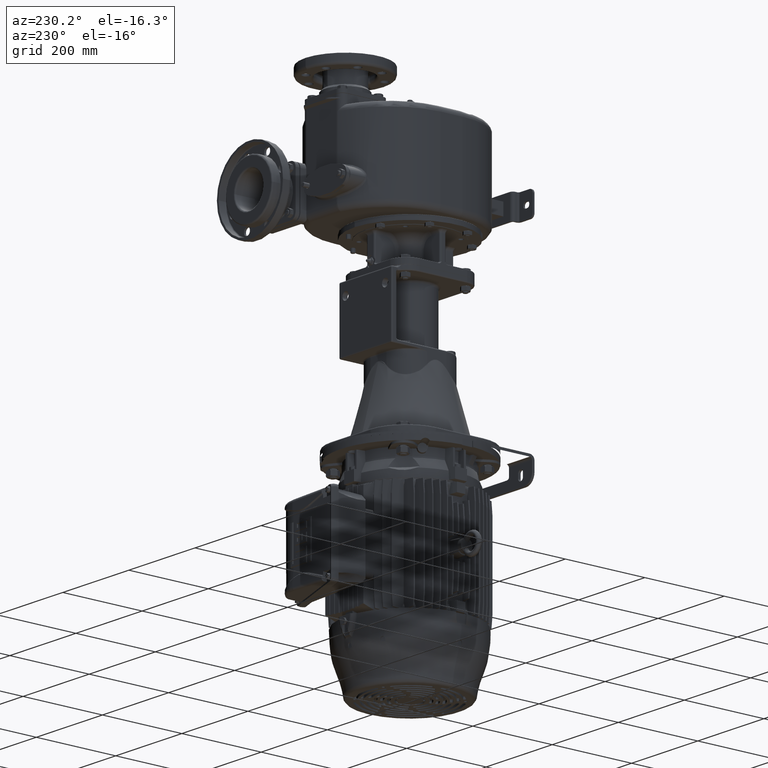
[diagram: clean part render]
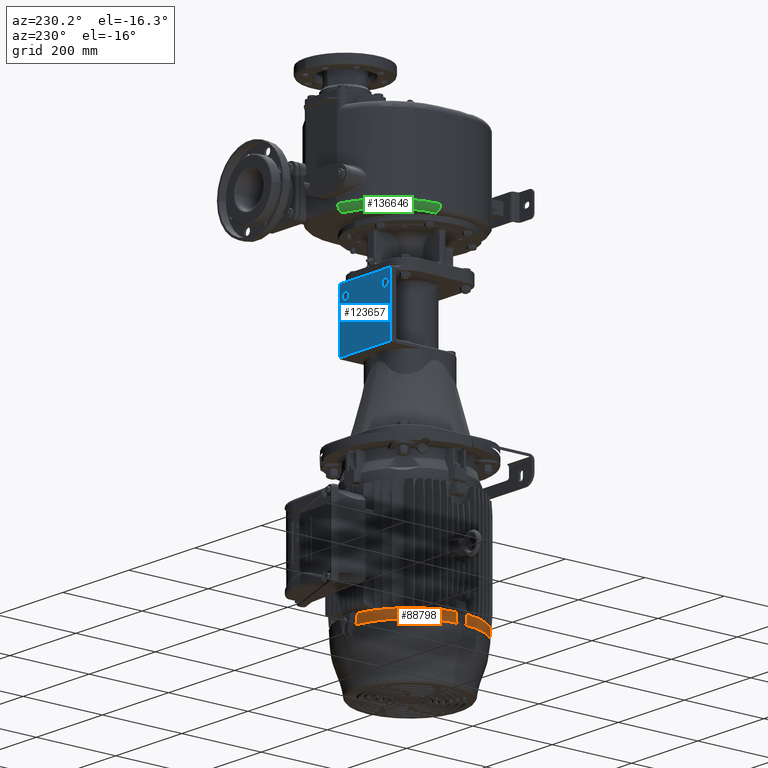
[diagram: same view with three faces highlighted in distinct colors, each labeled with its STEP entity id]
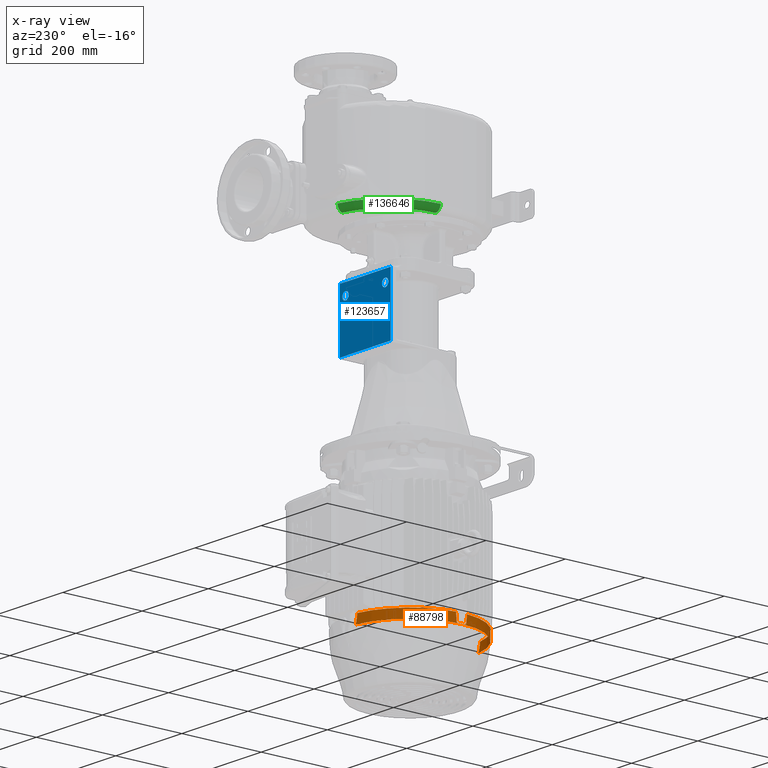
[diagram: x-ray of the same camera — body ghosted, the three highlighted faces saturated]
A machine part, auxiliary view with three faces highlighted in distinct colors.
The next image is the same camera in x-ray (body ghosted, the three faces saturated) — at least one of them is partly hidden behind the body in this view.
Their STEP definitions:

[orange] entity #88798 — the highlighted conical surface has half-angle 1.75 deg.
#407=CARTESIAN_POINT('',(-2.552182760664E1,3.279399471538E0,-8.592500025034E2));
#436=CARTESIAN_POINT('',(8.634161712649E-1,1.58E2,-8.5925E2));
#437=DIRECTION('',(0.E0,0.E0,1.E0));
#438=DIRECTION('',(-9.961033580094E-1,-8.819353809900E-2,0.E0));
#439=AXIS2_PLACEMENT_3D('',#436,#437,#438);
#454=CARTESIAN_POINT('',(8.634161712649E-1,1.58E2,-8.5925E2));
#455=DIRECTION('',(0.E0,0.E0,1.E0));
#456=DIRECTION('',(-1.681078342649E-1,9.857686118247E-1,0.E0));
#457=AXIS2_PLACEMENT_3D('',#454,#455,#456);
#486=CARTESIAN_POINT('',(-2.552182821588E1,3.127206041322E2,-8.592500025034E2));
#736=CARTESIAN_POINT('',(-2.495837948466E1,3.126292350262E2,-8.652668567173E2));
#738=CARTESIAN_POINT('',(-2.495837948467E1,3.370764973822E0,-8.652668567172E2));
#739=CARTESIAN_POINT('',(-2.502093538413E1,3.360575420930E0,-8.645989061599E2));
#740=CARTESIAN_POINT('',(-2.514609689609E1,3.340142174601E0,-8.632626152396E2));
#741=CARTESIAN_POINT('',(-2.533390851275E1,3.309713605558E0,-8.612569976525E2));
#742=CARTESIAN_POINT('',(-2.545917388664E1,3.289507572691E0,-8.599191309228E2));
#743=CARTESIAN_POINT('',(-2.552182760664E1,3.279399471538E0,-8.592500025034E2));
#745=CARTESIAN_POINT('',(-2.136977705618E1,3.317058907584E0,-8.815578225722E2));
#746=CARTESIAN_POINT('',(-2.229962292013E1,3.369314161969E0,-8.789208372825E2));
#747=CARTESIAN_POINT('',(-2.382941018441E1,3.440216795335E0,-8.735691604585E2));
#748=CARTESIAN_POINT('',(-2.469697889831E1,3.413676214610E0,-8.680613886810E2));
#749=CARTESIAN_POINT('',(-2.495837948467E1,3.370764973822E0,-8.652668567172E2));
#751=CARTESIAN_POINT('',(-2.495837948466E1,3.126292350262E2,-8.652668567173E2));
#752=CARTESIAN_POINT('',(-2.469697889829E1,3.125863237854E2,-8.680613886811E2));
#753=CARTESIAN_POINT('',(-2.382941018441E1,3.125597832047E2,-8.735691604584E2));
#754=CARTESIAN_POINT('',(-2.229962292013E1,3.126306858380E2,-8.789208372825E2));
#755=CARTESIAN_POINT('',(-2.136977705618E1,3.126829410924E2,-8.815578225722E2));
#757=CARTESIAN_POINT('',(-2.552182821588E1,3.127206041322E2,-8.592500025034E2));
#758=CARTESIAN_POINT('',(-2.545917449588E1,3.127104960311E2,-8.599191309228E2));
#759=CARTESIAN_POINT('',(-2.533390822844E1,3.126902847127E2,-8.612569976525E2));
#760=CARTESIAN_POINT('',(-2.514609697732E1,3.126598583059E2,-8.632626152397E2));
#761=CARTESIAN_POINT('',(-2.502093538413E1,3.126394245791E2,-8.645989061598E2));
#762=CARTESIAN_POINT('',(-2.495837948466E1,3.126292350262E2,-8.652668567173E2));
#764=CARTESIAN_POINT('',(-1.550041079223E2,1.695826025889E2,-8.8075E2));
#765=CARTESIAN_POINT('',(-1.551676963007E2,1.703358375773E2,-8.735834478003E2));
#766=CARTESIAN_POINT('',(-1.553260314024E2,1.710890846329E2,-8.664167807894E2));
#767=CARTESIAN_POINT('',(-1.554791604710E2,1.718423436471E2,-8.5925E2));
#769=CARTESIAN_POINT('',(-1.554791604710E2,1.441576563529E2,-8.5925E2));
#770=CARTESIAN_POINT('',(-1.553260314024E2,1.449109153671E2,-8.664167807894E2));
#771=CARTESIAN_POINT('',(-1.551676963007E2,1.456641624227E2,-8.735834478002E2));
#772=CARTESIAN_POINT('',(-1.550041079223E2,1.464173974111E2,-8.8075E2));
#1098=CARTESIAN_POINT('',(8.634161712649E-1,1.58E2,-8.815578226274E2));
#1099=DIRECTION('',(0.E0,0.E0,-1.E0));
#1100=DIRECTION('',(-1.E0,0.E0,0.E0));
#1101=AXIS2_PLACEMENT_3D('',#1098,#1099,#1100);
#1231=CARTESIAN_POINT('',(8.634161712649E-1,1.58E2,-8.815578226274E2));
#1232=DIRECTION('',(0.E0,0.E0,-1.E0));
#1233=DIRECTION('',(-1.422718546429E-1,-9.898276210414E-1,0.E0));
#1234=AXIS2_PLACEMENT_3D('',#1231,#1232,#1233);
#1242=CARTESIAN_POINT('',(-2.136977705618E1,3.317058907584E0,
-8.815578225722E2));
#1986=CARTESIAN_POINT('',(-2.495837948467E1,3.370764973822E0,
-8.652668567172E2));
#11293=CARTESIAN_POINT('',(-2.136977705618E1,3.126829410924E2,
-8.815578225722E2));
#11711=CARTESIAN_POINT('',(8.634161712649E-1,1.58E2,-8.8075E2));
#11712=DIRECTION('',(0.E0,0.E0,1.E0));
#11713=DIRECTION('',(-9.972503530911E-1,7.410622956036E-2,0.E0));
#11714=AXIS2_PLACEMENT_3D('',#11711,#11712,#11713);
#82161=VERTEX_POINT('',#1242);
#83054=CARTESIAN_POINT('',(-1.550041079223E2,1.464173974111E2,-8.8075E2));
#83056=VERTEX_POINT('',#83054);
#83057=CARTESIAN_POINT('',(-1.554791604710E2,1.718423436471E2,-8.5925E2));
#83058=VERTEX_POINT('',#83057);
#83059=CARTESIAN_POINT('',(-1.550041079223E2,1.695826025889E2,-8.8075E2));
#83060=VERTEX_POINT('',#83059);
#83061=CARTESIAN_POINT('',(-1.554791604710E2,1.441576563529E2,-8.5925E2));
#83062=VERTEX_POINT('',#83061);
#83065=VERTEX_POINT('',#1986);
#83070=VERTEX_POINT('',#486);
#83071=VERTEX_POINT('',#736);
#83074=VERTEX_POINT('',#407);
#83075=VERTEX_POINT('',#11293);
#83202=CARTESIAN_POINT('',(-1.554091890593E2,1.58E2,-8.815578226274E2));
#83203=VERTEX_POINT('',#83202);
#88772=CARTESIAN_POINT('',(8.634161712649E-1,1.58E2,-8.704039113137E2));
#88773=DIRECTION('',(0.E0,0.E0,1.E0));
#88774=DIRECTION('',(1.E0,0.E0,0.E0));
#88775=AXIS2_PLACEMENT_3D('',#88772,#88773,#88774);
#88776=CONICAL_SURFACE('',#88775,1.566133880428E2,1.75E0);
#88777=ORIENTED_EDGE('',*,*,#88553,.T.);
#88779=ORIENTED_EDGE('',*,*,#88778,.F.);
#88781=ORIENTED_EDGE('',*,*,#88780,.F.);
#88783=ORIENTED_EDGE('',*,*,#88782,.T.);
#88785=ORIENTED_EDGE('',*,*,#88784,.T.);
#88787=ORIENTED_EDGE('',*,*,#88786,.F.);
#88788=ORIENTED_EDGE('',*,*,#88763,.F.);
#88789=ORIENTED_EDGE('',*,*,#88561,.T.);
#88791=ORIENTED_EDGE('',*,*,#88790,.F.);
#88793=ORIENTED_EDGE('',*,*,#88792,.T.);
#88795=ORIENTED_EDGE('',*,*,#88794,.F.);
#88796=EDGE_LOOP('',(#88777,#88779,#88781,#88783,#88785,#88787,#88788,#88789,
#88791,#88793,#88795));
#88797=FACE_OUTER_BOUND('',#88796,.F.);
#88798=ADVANCED_FACE('',(#88797),#88776,.T.);
#440=CIRCLE('',#439,1.569541708551E2);
#458=CIRCLE('',#457,1.569541708551E2);
#744=B_SPLINE_CURVE_WITH_KNOTS('',3,(#738,#739,#740,#741,#742,#743),
.UNSPECIFIED.,.F.,.F.,(4,1,1,4),(0.E0,3.333333333333E-1,6.666666666667E-1,1.E0),
.UNSPECIFIED.);
#750=B_SPLINE_CURVE_WITH_KNOTS('',3,(#745,#746,#747,#748,#749),.UNSPECIFIED.,
.F.,.F.,(4,1,4),(0.E0,5.E-1,1.E0),.UNSPECIFIED.);
#756=B_SPLINE_CURVE_WITH_KNOTS('',3,(#751,#752,#753,#754,#755),.UNSPECIFIED.,
.F.,.F.,(4,1,4),(0.E0,5.E-1,1.E0),.UNSPECIFIED.);
#763=B_SPLINE_CURVE_WITH_KNOTS('',3,(#757,#758,#759,#760,#761,#762),
.UNSPECIFIED.,.F.,.F.,(4,1,1,4),(0.E0,3.333333333333E-1,6.666666666667E-1,1.E0),
.UNSPECIFIED.);
#768=B_SPLINE_CURVE_WITH_KNOTS('',3,(#764,#765,#766,#767),.UNSPECIFIED.,.F.,.F.,
(4,4),(0.E0,1.E0),.UNSPECIFIED.);
#773=B_SPLINE_CURVE_WITH_KNOTS('',3,(#769,#770,#771,#772),.UNSPECIFIED.,.F.,.F.,
(4,4),(0.E0,1.E0),.UNSPECIFIED.);
#1102=CIRCLE('',#1101,1.562726052306E2);
#1235=CIRCLE('',#1234,1.562726052306E2);
#11715=CIRCLE('',#11714,1.562972864441E2);
#88553=EDGE_CURVE('',#83062,#83074,#440,.T.);
#88561=EDGE_CURVE('',#83070,#83058,#458,.T.);
#88763=EDGE_CURVE('',#83070,#83071,#763,.T.);
#88778=EDGE_CURVE('',#83065,#83074,#744,.T.);
#88780=EDGE_CURVE('',#82161,#83065,#750,.T.);
#88782=EDGE_CURVE('',#82161,#83203,#1235,.T.);
#88784=EDGE_CURVE('',#83203,#83075,#1102,.T.);
#88786=EDGE_CURVE('',#83071,#83075,#756,.T.);
#88790=EDGE_CURVE('',#83060,#83058,#768,.T.);
#88792=EDGE_CURVE('',#83060,#83056,#11715,.T.);
#88794=EDGE_CURVE('',#83062,#83056,#773,.T.);

[blue] entity #123657 — the highlighted planar face has unit normal (0, 1, 0).
#29812=DIRECTION('',(-1.E0,0.E0,0.E0));
#29813=VECTOR('',#29812,1.54E2);
#29814=CARTESIAN_POINT('',(7.7E1,2.71E2,-3.135E2));
#29815=LINE('',#29814,#29813);
#29816=CARTESIAN_POINT('',(7.7E1,2.71E2,-1.645E2));
#29817=CARTESIAN_POINT('',(7.7E1,2.71E2,-2.141666666667E2));
#29818=CARTESIAN_POINT('',(7.7E1,2.71E2,-2.638333333333E2));
#29819=CARTESIAN_POINT('',(7.7E1,2.71E2,-3.135E2));
#29821=DIRECTION('',(1.E0,0.E0,0.E0));
#29822=VECTOR('',#29821,1.54E2);
#29823=CARTESIAN_POINT('',(-7.7E1,2.71E2,-1.645E2));
#29824=LINE('',#29823,#29822);
#29825=CARTESIAN_POINT('',(-7.7E1,2.71E2,-3.135E2));
#29826=CARTESIAN_POINT('',(-7.7E1,2.71E2,-2.638333333333E2));
#29827=CARTESIAN_POINT('',(-7.7E1,2.71E2,-2.141666666667E2));
#29828=CARTESIAN_POINT('',(-7.7E1,2.71E2,-1.645E2));
#29830=CARTESIAN_POINT('',(6.E1,2.71E2,-1.925E2));
#29831=DIRECTION('',(0.E0,1.E0,0.E0));
#29832=DIRECTION('',(0.E0,0.E0,1.E0));
#29833=AXIS2_PLACEMENT_3D('',#29830,#29831,#29832);
#29835=CARTESIAN_POINT('',(6.E1,2.71E2,-1.925E2));
#29836=DIRECTION('',(0.E0,1.E0,0.E0));
#29837=DIRECTION('',(0.E0,0.E0,-1.E0));
#29838=AXIS2_PLACEMENT_3D('',#29835,#29836,#29837);
#29840=CARTESIAN_POINT('',(-6.E1,2.71E2,-1.925E2));
#29841=DIRECTION('',(0.E0,1.E0,0.E0));
#29842=DIRECTION('',(0.E0,0.E0,1.E0));
#29843=AXIS2_PLACEMENT_3D('',#29840,#29841,#29842);
#29845=CARTESIAN_POINT('',(-6.E1,2.71E2,-1.925E2));
#29846=DIRECTION('',(0.E0,1.E0,0.E0));
#29847=DIRECTION('',(0.E0,0.E0,-1.E0));
#29848=AXIS2_PLACEMENT_3D('',#29845,#29846,#29847);
#80224=CARTESIAN_POINT('',(7.7E1,2.71E2,-3.135E2));
#80225=CARTESIAN_POINT('',(-7.7E1,2.71E2,-3.135E2));
#80226=VERTEX_POINT('',#80224);
#80227=VERTEX_POINT('',#80225);
#80232=CARTESIAN_POINT('',(-7.7E1,2.71E2,-1.645E2));
#80233=CARTESIAN_POINT('',(7.7E1,2.71E2,-1.645E2));
#80234=VERTEX_POINT('',#80232);
#80235=VERTEX_POINT('',#80233);
#80376=CARTESIAN_POINT('',(6.E1,2.71E2,-1.83E2));
#80377=CARTESIAN_POINT('',(6.E1,2.71E2,-2.02E2));
#80378=VERTEX_POINT('',#80376);
#80379=VERTEX_POINT('',#80377);
#80380=CARTESIAN_POINT('',(-6.E1,2.71E2,-1.83E2));
#80381=CARTESIAN_POINT('',(-6.E1,2.71E2,-2.02E2));
#80382=VERTEX_POINT('',#80380);
#80383=VERTEX_POINT('',#80381);
#123632=CARTESIAN_POINT('',(-1.006557135644E-13,2.71E2,-2.4E2));
#123633=DIRECTION('',(0.E0,1.E0,0.E0));
#123634=DIRECTION('',(0.E0,0.E0,-1.E0));
#123635=AXIS2_PLACEMENT_3D('',#123632,#123633,#123634);
#123636=PLANE('',#123635);
#123638=ORIENTED_EDGE('',*,*,#123637,.F.);
#123640=ORIENTED_EDGE('',*,*,#123639,.F.);
#123641=ORIENTED_EDGE('',*,*,#121914,.F.);
#123643=ORIENTED_EDGE('',*,*,#123642,.F.);
#123644=EDGE_LOOP('',(#123638,#123640,#123641,#123643));
#123645=FACE_OUTER_BOUND('',#123644,.F.);
#123646=ORIENTED_EDGE('',*,*,#123622,.T.);
#123648=ORIENTED_EDGE('',*,*,#123647,.T.);
#123649=EDGE_LOOP('',(#123646,#123648));
#123650=FACE_BOUND('',#123649,.F.);
#123652=ORIENTED_EDGE('',*,*,#123651,.T.);
#123654=ORIENTED_EDGE('',*,*,#123653,.T.);
#123655=EDGE_LOOP('',(#123652,#123654));
#123656=FACE_BOUND('',#123655,.F.);
#123657=ADVANCED_FACE('',(#123645,#123650,#123656),#123636,.T.);
#29820=B_SPLINE_CURVE_WITH_KNOTS('',3,(#29816,#29817,#29818,#29819),
.UNSPECIFIED.,.F.,.F.,(4,4),(0.E0,1.E0),.UNSPECIFIED.);
#29829=B_SPLINE_CURVE_WITH_KNOTS('',3,(#29825,#29826,#29827,#29828),
.UNSPECIFIED.,.F.,.F.,(4,4),(0.E0,1.E0),.UNSPECIFIED.);
#29834=CIRCLE('',#29833,9.5E0);
#29839=CIRCLE('',#29838,9.5E0);
#29844=CIRCLE('',#29843,9.5E0);
#29849=CIRCLE('',#29848,9.5E0);
#121914=EDGE_CURVE('',#80234,#80235,#29824,.T.);
#123622=EDGE_CURVE('',#80378,#80379,#29834,.T.);
#123637=EDGE_CURVE('',#80226,#80227,#29815,.T.);
#123639=EDGE_CURVE('',#80235,#80226,#29820,.T.);
#123642=EDGE_CURVE('',#80227,#80234,#29829,.T.);
#123647=EDGE_CURVE('',#80379,#80378,#29839,.T.);
#123651=EDGE_CURVE('',#80382,#80383,#29844,.T.);
#123653=EDGE_CURVE('',#80383,#80382,#29849,.T.);

[green] entity #136646 — the highlighted toroidal blend (fillet) surface has major radius 143 mm and minor (blend) radius 15 mm.
#35539=CARTESIAN_POINT('',(0.E0,2.129714314863E2,-6.E1));
#35540=DIRECTION('',(0.E0,0.E0,-1.E0));
#35541=DIRECTION('',(-1.E0,0.E0,0.E0));
#35542=AXIS2_PLACEMENT_3D('',#35539,#35540,#35541);
#44822=CARTESIAN_POINT('',(-1.43E2,2.129714314863E2,-4.5E1));
#44823=DIRECTION('',(0.E0,1.E0,0.E0));
#44824=DIRECTION('',(0.E0,0.E0,-1.E0));
#44825=AXIS2_PLACEMENT_3D('',#44822,#44823,#44824);
#44962=CARTESIAN_POINT('',(0.E0,2.129714314863E2,-4.5E1));
#44963=DIRECTION('',(0.E0,0.E0,-1.E0));
#44964=DIRECTION('',(-1.E0,0.E0,0.E0));
#44965=AXIS2_PLACEMENT_3D('',#44962,#44963,#44964);
#44996=CARTESIAN_POINT('',(-2.9E1,3.53E2,-4.5E1));
#44997=DIRECTION('',(9.792207588372E-1,2.027972027972E-1,0.E0));
#44998=DIRECTION('',(0.E0,0.E0,-1.E0));
#44999=AXIS2_PLACEMENT_3D('',#44996,#44997,#44998);
#77286=CARTESIAN_POINT('',(-2.9E1,3.53E2,-6.E1));
#77288=VERTEX_POINT('',#77286);
#77302=CARTESIAN_POINT('',(-1.43E2,2.129714314863E2,-6.E1));
#77303=VERTEX_POINT('',#77302);
#77304=CARTESIAN_POINT('',(-1.58E2,2.129714314863E2,-4.5E1));
#77305=VERTEX_POINT('',#77304);
#77306=CARTESIAN_POINT('',(-3.204195804196E1,3.676883113826E2,-4.5E1));
#77307=VERTEX_POINT('',#77306);
#136633=CARTESIAN_POINT('',(0.E0,2.129714314863E2,-4.5E1));
#136634=DIRECTION('',(0.E0,0.E0,-1.E0));
#136635=DIRECTION('',(-9.999864023712E-1,-5.214889517222E-3,0.E0));
#136636=AXIS2_PLACEMENT_3D('',#136633,#136634,#136635);
#136637=TOROIDAL_SURFACE('',#136636,1.43E2,1.5E1);
#136639=ORIENTED_EDGE('',*,*,#136638,.F.);
#136640=ORIENTED_EDGE('',*,*,#136625,.F.);
#136641=ORIENTED_EDGE('',*,*,#128869,.T.);
#136643=ORIENTED_EDGE('',*,*,#136642,.T.);
#136644=EDGE_LOOP('',(#136639,#136640,#136641,#136643));
#136645=FACE_OUTER_BOUND('',#136644,.F.);
#136646=ADVANCED_FACE('',(#136645),#136637,.T.);
#35543=CIRCLE('',#35542,1.43E2);
#44826=CIRCLE('',#44825,1.5E1);
#44966=CIRCLE('',#44965,1.58E2);
#45000=CIRCLE('',#44999,1.5E1);
#128869=EDGE_CURVE('',#77303,#77288,#35543,.T.);
#136625=EDGE_CURVE('',#77303,#77305,#44826,.T.);
#136638=EDGE_CURVE('',#77305,#77307,#44966,.T.);
#136642=EDGE_CURVE('',#77288,#77307,#45000,.T.);